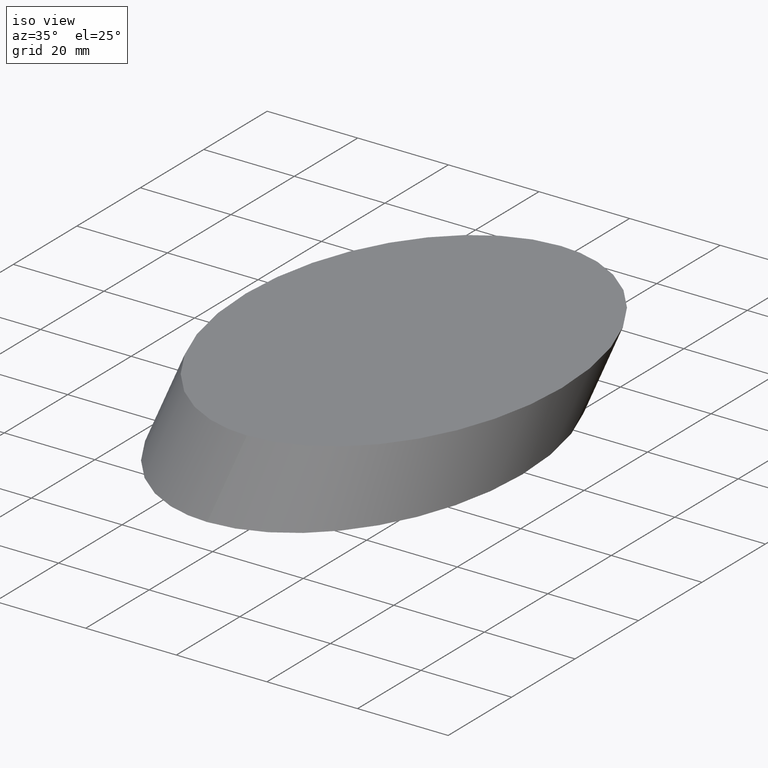
[diagram: clean part render]
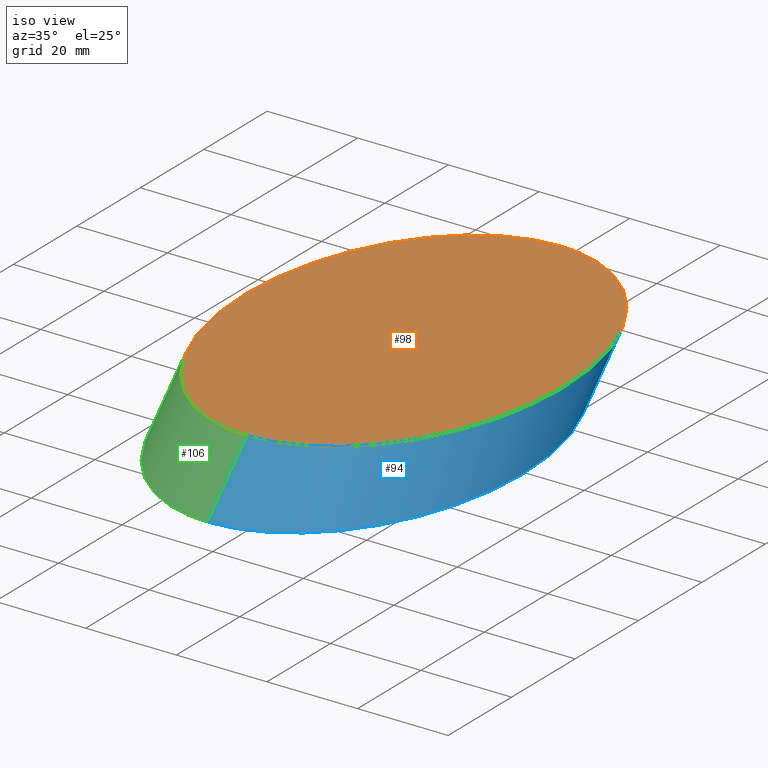
[diagram: same view with three faces highlighted in distinct colors, each labeled with its STEP entity id]
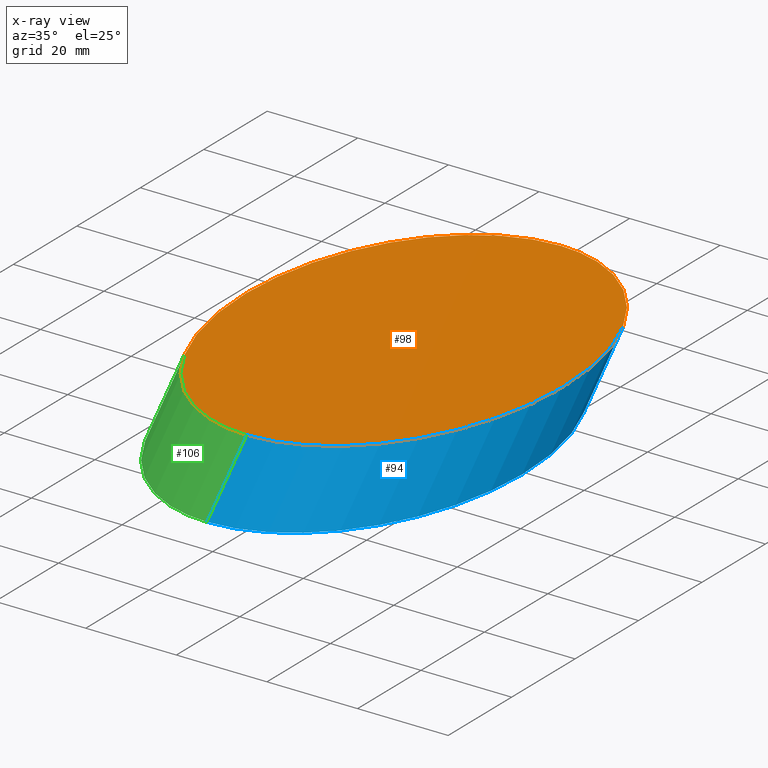
[diagram: x-ray of the same camera — body ghosted, the three highlighted faces saturated]
A machine part, iso view with three faces highlighted in distinct colors.
The next image is the same camera in x-ray (body ghosted, the three faces saturated) — at least one of them is partly hidden behind the body in this view.
Their STEP definitions:

[orange] entity #98 — the highlighted planar face has unit normal (0, 0, 1).
#8 = EDGE_CURVE ( 'NONE', #122, #132, #87, .T. ) ;
#27 = CARTESIAN_POINT ( 'NONE',  ( 124.3923829817160400, 97.79551942170032000, 12.50164789137812200 ) ) ;
#29 = ORIENTED_EDGE ( 'NONE', *, *, #8, .T. ) ;
#36 = CARTESIAN_POINT ( 'NONE',  ( 54.39238298171605400, 97.79551942170030500, 12.50164789137812000 ) ) ;
#43 = CARTESIAN_POINT ( 'NONE',  ( 54.39238298171605400, 97.79551942170030500, 12.50164789137812000 ) ) ;
#46 = DIRECTION ( 'NONE',  ( 1.000000000000000000, 0.0000000000000000000, -0.0000000000000000000 ) ) ;
#49 = CARTESIAN_POINT ( 'NONE',  ( 54.39238298171604700, -1.214480578299696800, 12.50164789137812000 ) ) ;
#54 = CARTESIAN_POINT ( 'NONE',  ( -15.60761701828394100, 97.79551942170032000, 12.50164789137812200 ) ) ;
#60 = CARTESIAN_POINT ( 'NONE',  ( 124.3923829817160400, -1.214480578299708800, 12.50164789137812200 ) ) ;
#65 = CARTESIAN_POINT ( 'NONE',  ( 54.39238298171604700, -1.214480578299696800, 12.50164789137812000 ) ) ;
#75 = CARTESIAN_POINT ( 'NONE',  ( 54.39238298171605400, 97.79551942170030500, 12.50164789137812000 ) ) ;
#79 = CARTESIAN_POINT ( 'NONE',  ( 54.39238298171604700, -1.214480578299696800, 12.50164789137812000 ) ) ;
#82 = EDGE_LOOP ( 'NONE', ( #29, #97 ) ) ;
#83 = PLANE ( 'NONE',  #118 ) ;
#87 =( BOUNDED_CURVE ( )  B_SPLINE_CURVE ( 3, ( #36, #54, #124, #79 ),
 .UNSPECIFIED., .F., .F. ) 
 B_SPLINE_CURVE_WITH_KNOTS ( ( 4, 4 ),
 ( 0.0000000000000000000, 3.141592653589793100 ),
 .UNSPECIFIED. ) 
 CURVE ( )  GEOMETRIC_REPRESENTATION_ITEM ( )  RATIONAL_B_SPLINE_CURVE ( ( 1.000000000000000000, 0.3333333333333333700, 0.3333333333333333700, 1.000000000000000000 ) ) 
 REPRESENTATION_ITEM ( '' )  );
#89 = DIRECTION ( 'NONE',  ( 0.0000000000000000000, 0.0000000000000000000, 1.000000000000000000 ) ) ;
#97 = ORIENTED_EDGE ( 'NONE', *, *, #105, .T. ) ;
#98 = ADVANCED_FACE ( 'NONE', ( #146 ), #83, .T. ) ;
#100 =( BOUNDED_CURVE ( )  B_SPLINE_CURVE ( 3, ( #65, #60, #27, #43 ),
 .UNSPECIFIED., .F., .T. ) 
 B_SPLINE_CURVE_WITH_KNOTS ( ( 4, 4 ),
 ( 3.141592653589793100, 6.283185307179586200 ),
 .UNSPECIFIED. ) 
 CURVE ( )  GEOMETRIC_REPRESENTATION_ITEM ( )  RATIONAL_B_SPLINE_CURVE ( ( 1.000000000000000000, 0.3333333333333333700, 0.3333333333333333700, 1.000000000000000000 ) ) 
 REPRESENTATION_ITEM ( '' )  );
#105 = EDGE_CURVE ( 'NONE', #132, #122, #100, .T. ) ;
#118 = AXIS2_PLACEMENT_3D ( 'NONE', #127, #89, #46 ) ;
#122 = VERTEX_POINT ( 'NONE', #75 ) ;
#124 = CARTESIAN_POINT ( 'NONE',  ( -15.60761701828394800, -1.214480578299684600, 12.50164789137812200 ) ) ;
#127 = CARTESIAN_POINT ( 'NONE',  ( 54.39238298171605400, 48.29051942170031000, 12.50164789137812000 ) ) ;
#132 = VERTEX_POINT ( 'NONE', #49 ) ;
#146 = FACE_OUTER_BOUND ( 'NONE', #82, .T. ) ;

[blue] entity #94 — the highlighted face is a freeform B-spline surface patch.
#3 = CARTESIAN_POINT ( 'NONE',  ( 54.39238298171605400, 85.29387153032210700, 0.0000000000000000000 ) ) ;
#5 = DIRECTION ( 'NONE',  ( 0.0000000000000000000, -0.7071067811865499000, -0.7071067811865452400 ) ) ;
#7 = ORIENTED_EDGE ( 'NONE', *, *, #105, .F. ) ;
#13 = CARTESIAN_POINT ( 'NONE',  ( 54.39238298171604700, -13.71612846967790100, 0.0000000000000000000 ) ) ;
#15 = CARTESIAN_POINT ( 'NONE',  ( 54.39238298171605400, 97.79551942170030500, 12.50164789137812000 ) ) ;
#18 = VECTOR ( 'NONE', #30, 1000.000000000000100 ) ;
#21 = EDGE_LOOP ( 'NONE', ( #7, #25, #145, #86 ) ) ;
#25 = ORIENTED_EDGE ( 'NONE', *, *, #125, .T. ) ;
#27 = CARTESIAN_POINT ( 'NONE',  ( 124.3923829817160400, 97.79551942170032000, 12.50164789137812200 ) ) ;
#30 = DIRECTION ( 'NONE',  ( 0.0000000000000000000, -0.7071067811865499000, -0.7071067811865452400 ) ) ;
#35 = CARTESIAN_POINT ( 'NONE',  ( 54.39238298171604700, -1.214480578299696800, 12.50164789137812200 ) ) ;
#37 =( BOUNDED_SURFACE ( )  B_SPLINE_SURFACE ( 3, 1, ( 
 ( #35, #148 ),
 ( #109, #57 ),
 ( #88, #38 ),
 ( #126, #111 ) ),
 .UNSPECIFIED., .F., .F., .F. ) 
 B_SPLINE_SURFACE_WITH_KNOTS ( ( 4, 4 ),
 ( 2, 2 ),
 ( 0.0000000000000000000, 1.000000000000000000 ),
 ( 0.0000000000000000000, 1.000000000000000000 ),
 .UNSPECIFIED. ) 
 GEOMETRIC_REPRESENTATION_ITEM ( )  RATIONAL_B_SPLINE_SURFACE ( (
 ( 1.000000000000000000, 1.000000000000000000),
 ( 0.3333333333333333700, 0.3333333333333333700),
 ( 0.3333333333333333700, 0.3333333333333333700),
 ( 1.000000000000000000, 1.000000000000000000) ) ) 
 REPRESENTATION_ITEM ( '' )  SURFACE ( )  );
#38 = CARTESIAN_POINT ( 'NONE',  ( 124.3923829817160400, 85.29387153032210700, -2.602085213965210200E-015 ) ) ;
#41 = CARTESIAN_POINT ( 'NONE',  ( 54.39238298171604700, -13.71612846967790100, 0.0000000000000000000 ) ) ;
#42 = VERTEX_POINT ( 'NONE', #13 ) ;
#43 = CARTESIAN_POINT ( 'NONE',  ( 54.39238298171605400, 97.79551942170030500, 12.50164789137812000 ) ) ;
#45 =( BOUNDED_CURVE ( )  B_SPLINE_CURVE ( 3, ( #41, #104, #130, #3 ),
 .UNSPECIFIED., .F., .T. ) 
 B_SPLINE_CURVE_WITH_KNOTS ( ( 4, 4 ),
 ( 3.141592653589793100, 6.283185307179586200 ),
 .UNSPECIFIED. ) 
 CURVE ( )  GEOMETRIC_REPRESENTATION_ITEM ( )  RATIONAL_B_SPLINE_CURVE ( ( 1.000000000000000000, 0.3333333333333333700, 0.3333333333333333700, 1.000000000000000000 ) ) 
 REPRESENTATION_ITEM ( '' )  );
#48 = CARTESIAN_POINT ( 'NONE',  ( 54.39238298171604700, -1.214480578299696800, 12.50164789137812000 ) ) ;
#49 = CARTESIAN_POINT ( 'NONE',  ( 54.39238298171604700, -1.214480578299696800, 12.50164789137812000 ) ) ;
#51 = VERTEX_POINT ( 'NONE', #136 ) ;
#53 = LINE ( 'NONE', #15, #70 ) ;
#57 = CARTESIAN_POINT ( 'NONE',  ( 124.3923829817160400, -13.71612846967791600, -2.602085213965210200E-015 ) ) ;
#60 = CARTESIAN_POINT ( 'NONE',  ( 124.3923829817160400, -1.214480578299708800, 12.50164789137812200 ) ) ;
#65 = CARTESIAN_POINT ( 'NONE',  ( 54.39238298171604700, -1.214480578299696800, 12.50164789137812000 ) ) ;
#70 = VECTOR ( 'NONE', #5, 1000.000000000000100 ) ;
#75 = CARTESIAN_POINT ( 'NONE',  ( 54.39238298171605400, 97.79551942170030500, 12.50164789137812000 ) ) ;
#86 = ORIENTED_EDGE ( 'NONE', *, *, #123, .F. ) ;
#88 = CARTESIAN_POINT ( 'NONE',  ( 124.3923829817160400, 97.79551942170032000, 12.50164789137812300 ) ) ;
#90 = FACE_OUTER_BOUND ( 'NONE', #21, .T. ) ;
#94 = ADVANCED_FACE ( 'NONE', ( #90 ), #37, .F. ) ;
#100 =( BOUNDED_CURVE ( )  B_SPLINE_CURVE ( 3, ( #65, #60, #27, #43 ),
 .UNSPECIFIED., .F., .T. ) 
 B_SPLINE_CURVE_WITH_KNOTS ( ( 4, 4 ),
 ( 3.141592653589793100, 6.283185307179586200 ),
 .UNSPECIFIED. ) 
 CURVE ( )  GEOMETRIC_REPRESENTATION_ITEM ( )  RATIONAL_B_SPLINE_CURVE ( ( 1.000000000000000000, 0.3333333333333333700, 0.3333333333333333700, 1.000000000000000000 ) ) 
 REPRESENTATION_ITEM ( '' )  );
#104 = CARTESIAN_POINT ( 'NONE',  ( 124.3923829817160400, -13.71612846967791400, 0.0000000000000000000 ) ) ;
#105 = EDGE_CURVE ( 'NONE', #132, #122, #100, .T. ) ;
#109 = CARTESIAN_POINT ( 'NONE',  ( 124.3923829817160400, -1.214480578299708800, 12.50164789137812300 ) ) ;
#111 = CARTESIAN_POINT ( 'NONE',  ( 54.39238298171605400, 85.29387153032209300, -3.469446951953614200E-015 ) ) ;
#122 = VERTEX_POINT ( 'NONE', #75 ) ;
#123 = EDGE_CURVE ( 'NONE', #122, #51, #53, .T. ) ;
#125 = EDGE_CURVE ( 'NONE', #132, #42, #138, .T. ) ;
#126 = CARTESIAN_POINT ( 'NONE',  ( 54.39238298171605400, 97.79551942170030500, 12.50164789137812200 ) ) ;
#130 = CARTESIAN_POINT ( 'NONE',  ( 124.3923829817160400, 85.29387153032210700, 0.0000000000000000000 ) ) ;
#132 = VERTEX_POINT ( 'NONE', #49 ) ;
#136 = CARTESIAN_POINT ( 'NONE',  ( 54.39238298171605400, 85.29387153032210700, 0.0000000000000000000 ) ) ;
#137 = EDGE_CURVE ( 'NONE', #42, #51, #45, .T. ) ;
#138 = LINE ( 'NONE', #48, #18 ) ;
#145 = ORIENTED_EDGE ( 'NONE', *, *, #137, .T. ) ;
#148 = CARTESIAN_POINT ( 'NONE',  ( 54.39238298171604700, -13.71612846967790500, -3.469446951953614200E-015 ) ) ;

[green] entity #106 — the highlighted face is a freeform B-spline surface patch.
#5 = DIRECTION ( 'NONE',  ( 0.0000000000000000000, -0.7071067811865499000, -0.7071067811865452400 ) ) ;
#8 = EDGE_CURVE ( 'NONE', #122, #132, #87, .T. ) ;
#10 = FACE_OUTER_BOUND ( 'NONE', #114, .T. ) ;
#11 = ORIENTED_EDGE ( 'NONE', *, *, #125, .F. ) ;
#13 = CARTESIAN_POINT ( 'NONE',  ( 54.39238298171604700, -13.71612846967790100, 0.0000000000000000000 ) ) ;
#15 = CARTESIAN_POINT ( 'NONE',  ( 54.39238298171605400, 97.79551942170030500, 12.50164789137812000 ) ) ;
#18 = VECTOR ( 'NONE', #30, 1000.000000000000100 ) ;
#26 = CARTESIAN_POINT ( 'NONE',  ( -15.60761701828394100, 97.79551942170032000, 12.50164789137812200 ) ) ;
#30 = DIRECTION ( 'NONE',  ( 0.0000000000000000000, -0.7071067811865499000, -0.7071067811865452400 ) ) ;
#36 = CARTESIAN_POINT ( 'NONE',  ( 54.39238298171605400, 97.79551942170030500, 12.50164789137812000 ) ) ;
#42 = VERTEX_POINT ( 'NONE', #13 ) ;
#48 = CARTESIAN_POINT ( 'NONE',  ( 54.39238298171604700, -1.214480578299696800, 12.50164789137812000 ) ) ;
#49 = CARTESIAN_POINT ( 'NONE',  ( 54.39238298171604700, -1.214480578299696800, 12.50164789137812000 ) ) ;
#51 = VERTEX_POINT ( 'NONE', #136 ) ;
#53 = LINE ( 'NONE', #15, #70 ) ;
#54 = CARTESIAN_POINT ( 'NONE',  ( -15.60761701828394100, 97.79551942170032000, 12.50164789137812200 ) ) ;
#56 = ORIENTED_EDGE ( 'NONE', *, *, #8, .F. ) ;
#66 = CARTESIAN_POINT ( 'NONE',  ( -15.60761701828394100, 85.29387153032210700, 0.0000000000000000000 ) ) ;
#69 = CARTESIAN_POINT ( 'NONE',  ( 54.39238298171604700, -13.71612846967790100, 0.0000000000000000000 ) ) ;
#70 = VECTOR ( 'NONE', #5, 1000.000000000000100 ) ;
#73 = CARTESIAN_POINT ( 'NONE',  ( -15.60761701828394800, -1.214480578299684600, 12.50164789137812200 ) ) ;
#74 =( BOUNDED_CURVE ( )  B_SPLINE_CURVE ( 3, ( #99, #66, #115, #69 ),
 .UNSPECIFIED., .F., .T. ) 
 B_SPLINE_CURVE_WITH_KNOTS ( ( 4, 4 ),
 ( 0.0000000000000000000, 3.141592653589793100 ),
 .UNSPECIFIED. ) 
 CURVE ( )  GEOMETRIC_REPRESENTATION_ITEM ( )  RATIONAL_B_SPLINE_CURVE ( ( 1.000000000000000000, 0.3333333333333333700, 0.3333333333333333700, 1.000000000000000000 ) ) 
 REPRESENTATION_ITEM ( '' )  );
#75 = CARTESIAN_POINT ( 'NONE',  ( 54.39238298171605400, 97.79551942170030500, 12.50164789137812000 ) ) ;
#79 = CARTESIAN_POINT ( 'NONE',  ( 54.39238298171604700, -1.214480578299696800, 12.50164789137812000 ) ) ;
#84 = CARTESIAN_POINT ( 'NONE',  ( -15.60761701828394100, 85.29387153032210700, 0.0000000000000000000 ) ) ;
#85 = CARTESIAN_POINT ( 'NONE',  ( 54.39238298171605400, 97.79551942170030500, 12.50164789137812000 ) ) ;
#87 =( BOUNDED_CURVE ( )  B_SPLINE_CURVE ( 3, ( #36, #54, #124, #79 ),
 .UNSPECIFIED., .F., .F. ) 
 B_SPLINE_CURVE_WITH_KNOTS ( ( 4, 4 ),
 ( 0.0000000000000000000, 3.141592653589793100 ),
 .UNSPECIFIED. ) 
 CURVE ( )  GEOMETRIC_REPRESENTATION_ITEM ( )  RATIONAL_B_SPLINE_CURVE ( ( 1.000000000000000000, 0.3333333333333333700, 0.3333333333333333700, 1.000000000000000000 ) ) 
 REPRESENTATION_ITEM ( '' )  );
#92 = CARTESIAN_POINT ( 'NONE',  ( 54.39238298171605400, 85.29387153032210700, 0.0000000000000000000 ) ) ;
#95 = EDGE_CURVE ( 'NONE', #51, #42, #74, .T. ) ;
#99 = CARTESIAN_POINT ( 'NONE',  ( 54.39238298171605400, 85.29387153032210700, 0.0000000000000000000 ) ) ;
#101 = CARTESIAN_POINT ( 'NONE',  ( 54.39238298171604700, -1.214480578299696800, 12.50164789137812000 ) ) ;
#103 = ORIENTED_EDGE ( 'NONE', *, *, #123, .T. ) ;
#106 = ADVANCED_FACE ( 'NONE', ( #10 ), #131, .F. ) ;
#113 = CARTESIAN_POINT ( 'NONE',  ( 54.39238298171604700, -13.71612846967790000, 0.0000000000000000000 ) ) ;
#114 = EDGE_LOOP ( 'NONE', ( #11, #56, #103, #135 ) ) ;
#115 = CARTESIAN_POINT ( 'NONE',  ( -15.60761701828394800, -13.71612846967789200, 0.0000000000000000000 ) ) ;
#122 = VERTEX_POINT ( 'NONE', #75 ) ;
#123 = EDGE_CURVE ( 'NONE', #122, #51, #53, .T. ) ;
#124 = CARTESIAN_POINT ( 'NONE',  ( -15.60761701828394800, -1.214480578299684600, 12.50164789137812200 ) ) ;
#125 = EDGE_CURVE ( 'NONE', #132, #42, #138, .T. ) ;
#131 =( BOUNDED_SURFACE ( )  B_SPLINE_SURFACE ( 3, 1, ( 
 ( #85, #92 ),
 ( #26, #84 ),
 ( #73, #140 ),
 ( #101, #113 ) ),
 .UNSPECIFIED., .F., .F., .F. ) 
 B_SPLINE_SURFACE_WITH_KNOTS ( ( 4, 4 ),
 ( 2, 2 ),
 ( 0.0000000000000000000, 1.000000000000000000 ),
 ( 0.0000000000000000000, 1.000000000000000000 ),
 .UNSPECIFIED. ) 
 GEOMETRIC_REPRESENTATION_ITEM ( )  RATIONAL_B_SPLINE_SURFACE ( (
 ( 1.000000000000000000, 1.000000000000000000),
 ( 0.3333333333333333700, 0.3333333333333333700),
 ( 0.3333333333333333700, 0.3333333333333333700),
 ( 1.000000000000000000, 1.000000000000000000) ) ) 
 REPRESENTATION_ITEM ( '' )  SURFACE ( )  );
#132 = VERTEX_POINT ( 'NONE', #49 ) ;
#135 = ORIENTED_EDGE ( 'NONE', *, *, #95, .T. ) ;
#136 = CARTESIAN_POINT ( 'NONE',  ( 54.39238298171605400, 85.29387153032210700, 0.0000000000000000000 ) ) ;
#138 = LINE ( 'NONE', #48, #18 ) ;
#140 = CARTESIAN_POINT ( 'NONE',  ( -15.60761701828394800, -13.71612846967788900, 0.0000000000000000000 ) ) ;